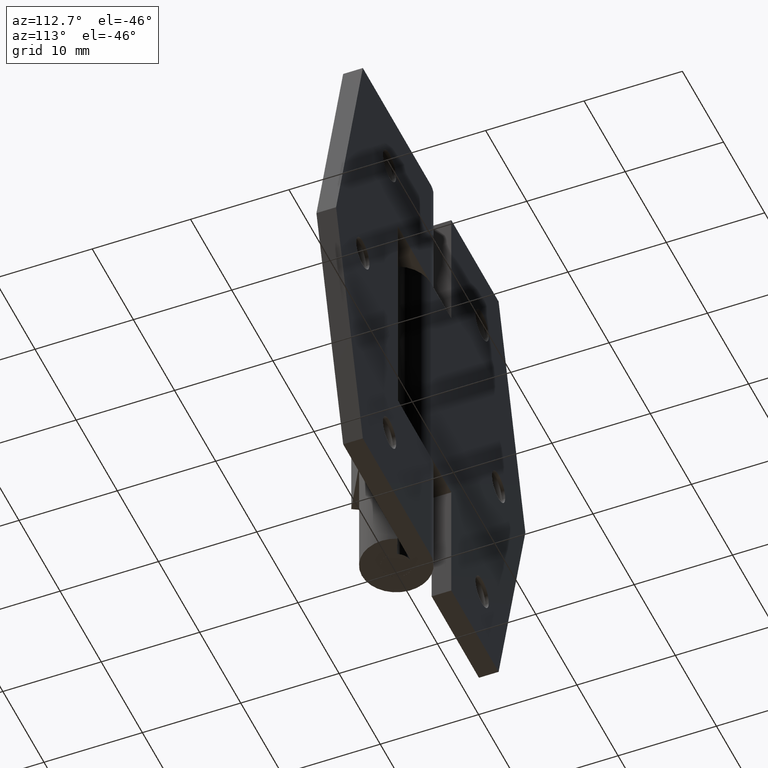
[diagram: clean part render]
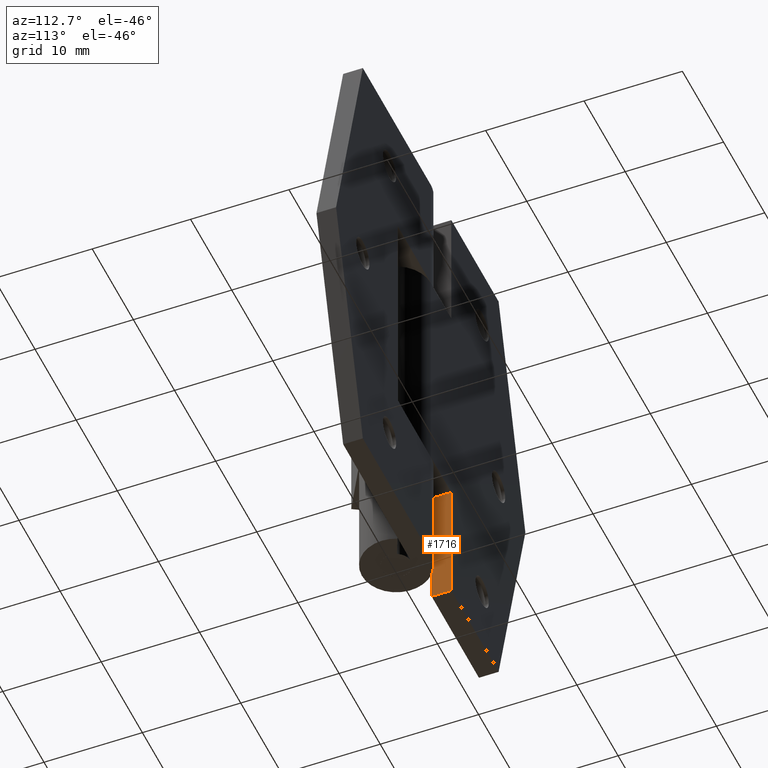
[diagram: same view with one face highlighted and labeled with its STEP entity id]
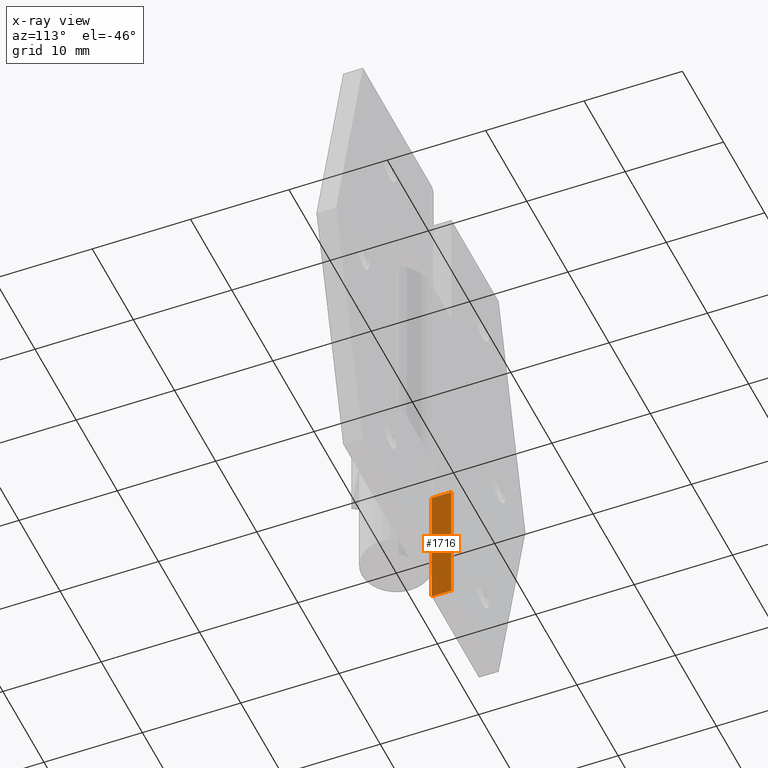
[diagram: x-ray of the same camera — body ghosted, the highlighted face saturated]
A machine part, auxiliary view. The second image highlights one B-rep face of the part: STEP entity #1716.
The next image is the same camera in x-ray: the body ghosted, the highlighted face saturated — about 0% of this face is hidden behind the body in this view.
In plain terms, the highlighted face is a freeform B-spline surface patch.
Its self-contained STEP definition (entity closure, byte-faithful):
#1284=CARTESIAN_POINT('',(-5.0,1.500000000000000,13.250000000000000));
#1285=VERTEX_POINT('',#1284);
#1286=CARTESIAN_POINT('',(-5.0,3.500000000000000,13.250000000000000));
#1287=VERTEX_POINT('',#1286);
#1288=CARTESIAN_POINT('',(-5.0,1.500000000000000,13.250000000000000));
#1289=CARTESIAN_POINT('',(-5.0,3.500000000000000,13.250000000000000));
#1290=QUASI_UNIFORM_CURVE('',1,(#1288,#1289),.UNSPECIFIED.,.F.,.U.);
#1291=EDGE_CURVE('',#1285,#1287,#1290,.T.);
#1620=CARTESIAN_POINT('',(-5.0,3.499999999999950,0.0));
#1621=VERTEX_POINT('',#1620);
#1627=CARTESIAN_POINT('',(-5.0,1.499999999999946,0.0));
#1628=VERTEX_POINT('',#1627);
#1629=CARTESIAN_POINT('',(-5.0,1.499999999999946,0.0));
#1630=CARTESIAN_POINT('',(-5.0,3.499999999999950,0.0));
#1631=QUASI_UNIFORM_CURVE('',1,(#1629,#1630),.UNSPECIFIED.,.F.,.U.);
#1632=EDGE_CURVE('',#1628,#1621,#1631,.T.);
#1697=CARTESIAN_POINT('',(-5.0,1.400100003876331,-0.661837474318928));
#1698=CARTESIAN_POINT('',(-5.0,1.400100003876331,13.911837829711629));
#1699=CARTESIAN_POINT('',(-5.0,3.599900049767795,-0.661837474318928));
#1700=CARTESIAN_POINT('',(-5.0,3.599900049767795,13.911837829711629));
#1701=B_SPLINE_SURFACE_WITH_KNOTS('',1,1,((#1697,#1699),(#1698,#1700)),.UNSPECIFIED.,.F.,.F.,.U.,(2,2),(2,2),(0.0,14.573675304030560),(0.0,2.199800045891464),.UNSPECIFIED.);
#1702=ORIENTED_EDGE('',*,*,#1291,.F.);
#1703=CARTESIAN_POINT('',(-5.0,1.499999999999946,0.0));
#1704=CARTESIAN_POINT('',(-5.0,1.500000000000000,13.250000000000000));
#1705=QUASI_UNIFORM_CURVE('',1,(#1703,#1704),.UNSPECIFIED.,.F.,.U.);
#1706=EDGE_CURVE('',#1628,#1285,#1705,.T.);
#1707=ORIENTED_EDGE('',*,*,#1706,.F.);
#1708=ORIENTED_EDGE('',*,*,#1632,.T.);
#1709=CARTESIAN_POINT('',(-5.0,3.499999999999950,0.0));
#1710=CARTESIAN_POINT('',(-5.0,3.500000000000000,13.250000000000000));
#1711=QUASI_UNIFORM_CURVE('',1,(#1709,#1710),.UNSPECIFIED.,.F.,.U.);
#1712=EDGE_CURVE('',#1621,#1287,#1711,.T.);
#1713=ORIENTED_EDGE('',*,*,#1712,.T.);
#1714=EDGE_LOOP('',(#1702,#1707,#1708,#1713));
#1715=FACE_OUTER_BOUND('',#1714,.T.);
#1716=ADVANCED_FACE('',(#1715),#1701,.F.);